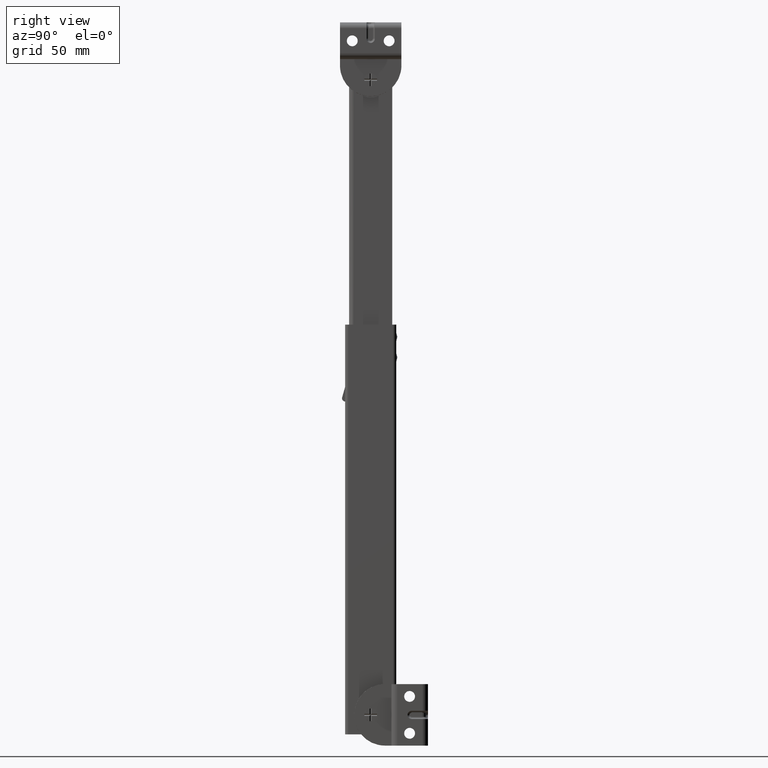
[diagram: clean part render]
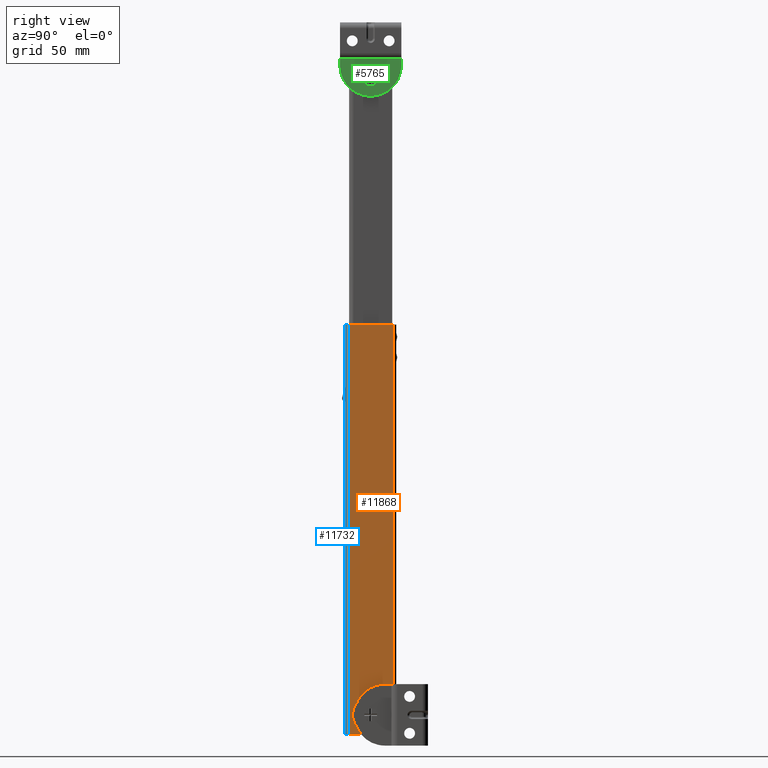
[diagram: same view with three faces highlighted in distinct colors, each labeled with its STEP entity id]
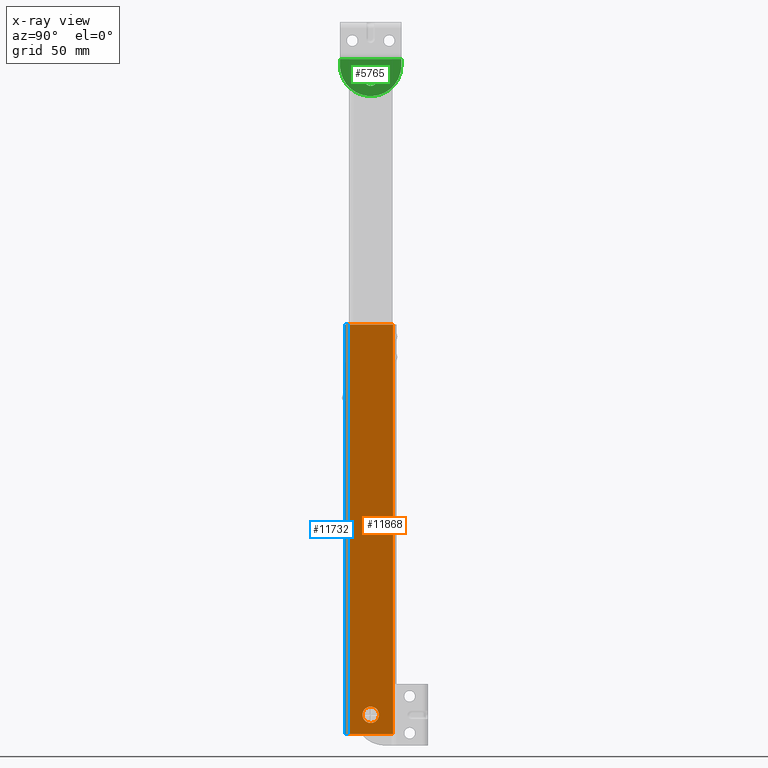
[diagram: x-ray of the same camera — body ghosted, the three highlighted faces saturated]
A machine part, right view with three faces highlighted in distinct colors.
The next image is the same camera in x-ray (body ghosted, the three faces saturated) — at least one of them is partly hidden behind the body in this view.
Their STEP definitions:

[orange] entity #11868 — the highlighted face is a freeform B-spline surface patch.
#10322=CARTESIAN_POINT('',(12.0,-3.972038105131488,0.472136941345894));
#10323=VERTEX_POINT('',#10322);
#10329=CARTESIAN_POINT('',(12.0,0.0,-4.0));
#10330=VERTEX_POINT('',#10329);
#10331=CARTESIAN_POINT('',(11.999999999999998,-3.972038105131488,0.472136941345894));
#10332=CARTESIAN_POINT('',(11.999999999999998,-4.0,0.236896481355243));
#10333=CARTESIAN_POINT('',(12.0,-4.0,0.0));
#10334=CARTESIAN_POINT('',(12.0,-4.000000000000000,-4.000000000000000));
#10335=CARTESIAN_POINT('',(12.0,0.0,-4.0));
#10343=(BOUNDED_CURVE()B_SPLINE_CURVE(2,(#10331,#10332,#10333,#10334,#10335),.UNSPECIFIED.,.F.,.U.)B_SPLINE_CURVE_WITH_KNOTS((3,2,3),(0.229562473284279,0.250000000000000,0.500000000000000),.UNSPECIFIED.)CURVE()GEOMETRIC_REPRESENTATION_ITEM()RATIONAL_B_SPLINE_CURVE((0.956026753734400,0.976055948062586,1.0,0.707106781186548,1.0))REPRESENTATION_ITEM(''));
#10344=EDGE_CURVE('',#10323,#10330,#10343,.T.);
#10346=CARTESIAN_POINT('',(12.0,3.992539193625168,-0.244194159158003));
#10347=VERTEX_POINT('',#10346);
#10348=CARTESIAN_POINT('',(12.0,0.0,-4.0));
#10349=CARTESIAN_POINT('',(12.0,3.762824265699262,-4.000000000000001));
#10350=CARTESIAN_POINT('',(11.999999999999998,3.992539193625168,-0.244194159158003));
#10358=(BOUNDED_CURVE()B_SPLINE_CURVE(2,(#10348,#10349,#10350),.UNSPECIFIED.,.F.,.U.)B_SPLINE_CURVE_WITH_KNOTS((3,3),(0.500000000000000,0.739332962153929),.UNSPECIFIED.)CURVE()GEOMETRIC_REPRESENTATION_ITEM()RATIONAL_B_SPLINE_CURVE((1.0,0.719603993386311,0.976072041484516))REPRESENTATION_ITEM(''));
#10359=EDGE_CURVE('',#10330,#10347,#10358,.T.);
#10433=CARTESIAN_POINT('',(12.0,0.0,4.0));
#10434=VERTEX_POINT('',#10433);
#10435=CARTESIAN_POINT('',(12.0,3.992539193625169,-0.244194159158003));
#10436=CARTESIAN_POINT('',(12.000000000000004,4.0,-0.122211054215786));
#10437=CARTESIAN_POINT('',(12.0,4.0,0.0));
#10438=CARTESIAN_POINT('',(12.0,4.000000000000000,4.000000000000000));
#10439=CARTESIAN_POINT('',(12.0,0.0,4.0));
#10447=(BOUNDED_CURVE()B_SPLINE_CURVE(2,(#10435,#10436,#10437,#10438,#10439),.UNSPECIFIED.,.F.,.U.)B_SPLINE_CURVE_WITH_KNOTS((3,2,3),(0.739332962153928,0.750000000000000,1.0),.UNSPECIFIED.)CURVE()GEOMETRIC_REPRESENTATION_ITEM()RATIONAL_B_SPLINE_CURVE((0.976072041484515,0.987502787800236,1.0,0.707106781186548,1.0))REPRESENTATION_ITEM(''));
#10448=EDGE_CURVE('',#10347,#10434,#10447,.T.);
#10450=CARTESIAN_POINT('',(12.0,0.0,4.0));
#10451=CARTESIAN_POINT('',(12.0,-3.552698098907588,4.000000000000000));
#10452=CARTESIAN_POINT('',(11.999999999999998,-3.972038105131488,0.472136941345894));
#10460=(BOUNDED_CURVE()B_SPLINE_CURVE(2,(#10450,#10451,#10452),.UNSPECIFIED.,.F.,.U.)B_SPLINE_CURVE_WITH_KNOTS((3,3),(0.0,0.229562473284279),.UNSPECIFIED.)CURVE()GEOMETRIC_REPRESENTATION_ITEM()RATIONAL_B_SPLINE_CURVE((1.0,0.731050833123962,0.956026753734400))REPRESENTATION_ITEM(''));
#10461=EDGE_CURVE('',#10434,#10323,#10460,.T.);
#11375=CARTESIAN_POINT('',(11.999993999999999,-10.900001860373660,190.500000000000000));
#11376=VERTEX_POINT('',#11375);
#11392=CARTESIAN_POINT('',(12.0,10.900002000000001,190.500000000000000));
#11393=VERTEX_POINT('',#11392);
#11394=CARTESIAN_POINT('',(11.999993999999999,-10.900001860373660,190.500000000000000));
#11395=CARTESIAN_POINT('',(12.0,10.900002000000001,190.500000000000000));
#11396=QUASI_UNIFORM_CURVE('',1,(#11394,#11395),.UNSPECIFIED.,.F.,.U.);
#11397=EDGE_CURVE('',#11376,#11393,#11396,.T.);
#11547=CARTESIAN_POINT('',(12.0,10.900002000000001,-9.500000000000000));
#11548=VERTEX_POINT('',#11547);
#11562=CARTESIAN_POINT('',(11.999993999999999,-10.900001860373660,-9.500000000000000));
#11563=VERTEX_POINT('',#11562);
#11564=CARTESIAN_POINT('',(11.999993999999999,-10.900001860373660,-9.500000000000000));
#11565=CARTESIAN_POINT('',(12.0,10.900002000000001,-9.500000000000000));
#11566=QUASI_UNIFORM_CURVE('',1,(#11564,#11565),.UNSPECIFIED.,.F.,.U.);
#11567=EDGE_CURVE('',#11563,#11548,#11566,.T.);
#11690=CARTESIAN_POINT('',(12.0,10.900002000000001,-9.500000000000000));
#11691=CARTESIAN_POINT('',(12.0,10.900002000000001,190.500000000000000));
#11692=QUASI_UNIFORM_CURVE('',1,(#11690,#11691),.UNSPECIFIED.,.F.,.U.);
#11693=EDGE_CURVE('',#11548,#11393,#11692,.T.);
#11725=CARTESIAN_POINT('',(11.999993999999999,-10.900001860373660,-9.500000000000000));
#11726=CARTESIAN_POINT('',(11.999993999999999,-10.900001860373660,190.500000000000000));
#11727=QUASI_UNIFORM_CURVE('',1,(#11725,#11726),.UNSPECIFIED.,.F.,.U.);
#11728=EDGE_CURVE('',#11563,#11376,#11727,.T.);
#11851=CARTESIAN_POINT('',(12.0,11.988911663402421,200.489999612361200));
#11852=CARTESIAN_POINT('',(12.0,11.988911663402421,-19.490004976779211));
#11853=CARTESIAN_POINT('',(12.0,-11.988910939054410,200.489999612361200));
#11854=CARTESIAN_POINT('',(12.0,-11.988910939054410,-19.490004976779211));
#11855=B_SPLINE_SURFACE_WITH_KNOTS('',1,1,((#11851,#11853),(#11852,#11854)),.UNSPECIFIED.,.F.,.F.,.U.,(2,2),(2,2),(0.0,219.980004589140410),(0.0,23.977822602456840),.UNSPECIFIED.);
#11856=ORIENTED_EDGE('',*,*,#11397,.F.);
#11857=ORIENTED_EDGE('',*,*,#11728,.F.);
#11858=ORIENTED_EDGE('',*,*,#11567,.T.);
#11859=ORIENTED_EDGE('',*,*,#11693,.T.);
#11860=EDGE_LOOP('',(#11856,#11857,#11858,#11859));
#11861=FACE_OUTER_BOUND('',#11860,.T.);
#11862=ORIENTED_EDGE('',*,*,#10359,.F.);
#11863=ORIENTED_EDGE('',*,*,#10344,.F.);
#11864=ORIENTED_EDGE('',*,*,#10461,.F.);
#11865=ORIENTED_EDGE('',*,*,#10448,.F.);
#11866=EDGE_LOOP('',(#11862,#11863,#11864,#11865));
#11867=FACE_BOUND('',#11866,.T.);
#11868=ADVANCED_FACE('',(#11861,#11867),#11855,.F.);

[blue] entity #11732 — the highlighted face is a freeform B-spline surface patch.
#11368=CARTESIAN_POINT('',(10.399994083775800,-12.500002000000000,190.500000000000000));
#11369=VERTEX_POINT('',#11368);
#11375=CARTESIAN_POINT('',(11.999993999999999,-10.900001860373660,190.500000000000000));
#11376=VERTEX_POINT('',#11375);
#11377=CARTESIAN_POINT('',(10.399994083775800,-12.500002000000000,190.500000000000000));
#11378=CARTESIAN_POINT('',(11.062735799930994,-12.500001965298924,190.500000000000060));
#11379=CARTESIAN_POINT('',(11.531364928883059,-12.031372770913890,190.500000000000000));
#11380=CARTESIAN_POINT('',(11.999994057835119,-11.562743576528854,190.500000000000060));
#11381=CARTESIAN_POINT('',(11.999993999999990,-10.900001860373660,190.500000000000000));
#11389=(BOUNDED_CURVE()B_SPLINE_CURVE(2,(#11377,#11378,#11379,#11380,#11381),.UNSPECIFIED.,.F.,.U.)B_SPLINE_CURVE_WITH_KNOTS((3,2,3),(0.0,0.500000000000000,1.0),.UNSPECIFIED.)CURVE()GEOMETRIC_REPRESENTATION_ITEM()RATIONAL_B_SPLINE_CURVE((1.0,0.923879529171744,1.0,0.923879529171744,1.0))REPRESENTATION_ITEM(''));
#11390=EDGE_CURVE('',#11369,#11376,#11389,.T.);
#11496=CARTESIAN_POINT('',(10.399994083775800,-12.500002000000000,-9.500000000000000));
#11497=VERTEX_POINT('',#11496);
#11562=CARTESIAN_POINT('',(11.999993999999999,-10.900001860373660,-9.500000000000000));
#11563=VERTEX_POINT('',#11562);
#11569=CARTESIAN_POINT('',(10.399994083775800,-12.500002000000000,-9.500000000000000));
#11570=CARTESIAN_POINT('',(11.062735799930994,-12.500001965298924,-9.500000000000002));
#11571=CARTESIAN_POINT('',(11.531364928883059,-12.031372770913890,-9.500000000000000));
#11572=CARTESIAN_POINT('',(11.999994057835119,-11.562743576528854,-9.500000000000002));
#11573=CARTESIAN_POINT('',(11.999993999999990,-10.900001860373660,-9.500000000000000));
#11581=(BOUNDED_CURVE()B_SPLINE_CURVE(2,(#11569,#11570,#11571,#11572,#11573),.UNSPECIFIED.,.F.,.U.)B_SPLINE_CURVE_WITH_KNOTS((3,2,3),(0.0,0.500000000000000,1.0),.UNSPECIFIED.)CURVE()GEOMETRIC_REPRESENTATION_ITEM()RATIONAL_B_SPLINE_CURVE((1.0,0.923879529171744,1.0,0.923879529171744,1.0))REPRESENTATION_ITEM(''));
#11582=EDGE_CURVE('',#11497,#11563,#11581,.T.);
#11704=CARTESIAN_POINT('',(11.998471150876719,-10.830210896519400,-14.500000000000011));
#11705=CARTESIAN_POINT('',(11.998471150876719,-10.830210896519400,195.625000000000000));
#11706=CARTESIAN_POINT('',(12.076689284000446,-12.621698526705110,-14.500000000000009));
#11707=CARTESIAN_POINT('',(12.076689284000446,-12.621698526705110,195.625000000000110));
#11708=CARTESIAN_POINT('',(10.287900966914032,-12.496070655144125,-14.500000000000011));
#11709=CARTESIAN_POINT('',(10.287900966914032,-12.496070655144125,195.625000000000030));
#11717=(BOUNDED_SURFACE()B_SPLINE_SURFACE(1,2,((#11704,#11706,#11708),(#11705,#11707,#11709)),.UNSPECIFIED.,.F.,.F.,.U.)B_SPLINE_SURFACE_WITH_KNOTS((2,2),(3,3),(0.0,210.125000000000000),(0.0,2.866788267697665),.UNSPECIFIED.)GEOMETRIC_REPRESENTATION_ITEM()RATIONAL_B_SPLINE_SURFACE(((1.0,0.664513874721744,0.996233608351123),(1.0,0.664513874721744,0.996233608351123)))REPRESENTATION_ITEM('')SURFACE());
#11718=ORIENTED_EDGE('',*,*,#11390,.F.);
#11719=CARTESIAN_POINT('',(10.399994083775800,-12.500002000000000,-9.500000000000000));
#11720=CARTESIAN_POINT('',(10.399994083775800,-12.500002000000000,190.500000000000000));
#11721=QUASI_UNIFORM_CURVE('',1,(#11719,#11720),.UNSPECIFIED.,.F.,.U.);
#11722=EDGE_CURVE('',#11497,#11369,#11721,.T.);
#11723=ORIENTED_EDGE('',*,*,#11722,.F.);
#11724=ORIENTED_EDGE('',*,*,#11582,.T.);
#11725=CARTESIAN_POINT('',(11.999993999999999,-10.900001860373660,-9.500000000000000));
#11726=CARTESIAN_POINT('',(11.999993999999999,-10.900001860373660,190.500000000000000));
#11727=QUASI_UNIFORM_CURVE('',1,(#11725,#11726),.UNSPECIFIED.,.F.,.U.);
#11728=EDGE_CURVE('',#11563,#11376,#11727,.T.);
#11729=ORIENTED_EDGE('',*,*,#11728,.T.);
#11730=EDGE_LOOP('',(#11718,#11723,#11724,#11729));
#11731=FACE_OUTER_BOUND('',#11730,.T.);
#11732=ADVANCED_FACE('',(#11731),#11717,.T.);

[green] entity #5765 — the highlighted face is a freeform B-spline surface patch.
#2996=CARTESIAN_POINT('',(14.899993999999960,3.026411951911372,310.378590408394470));
#2997=VERTEX_POINT('',#2996);
#3003=CARTESIAN_POINT('',(14.899993999999960,5.684342E-014,313.050000000000010));
#3004=VERTEX_POINT('',#3003);
#3005=CARTESIAN_POINT('',(14.899993999999960,5.684342E-014,313.050000000000010));
#3006=CARTESIAN_POINT('',(14.899993999999959,2.692230726780663,313.050000000000130));
#3007=CARTESIAN_POINT('',(14.899993999999966,3.026411951911372,310.378590408394530));
#3015=(BOUNDED_CURVE()B_SPLINE_CURVE(2,(#3005,#3006,#3007),.UNSPECIFIED.,.F.,.U.)B_SPLINE_CURVE_WITH_KNOTS((3,3),(0.500000000000000,0.728526070800710),.UNSPECIFIED.)CURVE()GEOMETRIC_REPRESENTATION_ITEM()RATIONAL_B_SPLINE_CURVE((1.0,0.732265054161557,0.954005429831116))REPRESENTATION_ITEM(''));
#3016=EDGE_CURVE('',#3004,#2997,#3015,.T.);
#3018=CARTESIAN_POINT('',(14.899993999999960,-3.049883865324402,309.973384064293380));
#3019=VERTEX_POINT('',#3018);
#3020=CARTESIAN_POINT('',(14.899993999999957,-3.049883865324401,309.973384064293440));
#3021=CARTESIAN_POINT('',(14.899993999999957,-3.049999999999943,309.986691777560220));
#3022=CARTESIAN_POINT('',(14.899993999999960,-3.049999999999943,310.0));
#3023=CARTESIAN_POINT('',(14.899993999999957,-3.049999999999942,313.050000000000010));
#3024=CARTESIAN_POINT('',(14.899993999999960,5.684342E-014,313.050000000000010));
#3032=(BOUNDED_CURVE()B_SPLINE_CURVE(2,(#3020,#3021,#3022,#3023,#3024),.UNSPECIFIED.,.F.,.U.)B_SPLINE_CURVE_WITH_KNOTS((3,2,3),(0.248460105383573,0.250000000000000,0.500000000000000),.UNSPECIFIED.)CURVE()GEOMETRIC_REPRESENTATION_ITEM()RATIONAL_B_SPLINE_CURVE((0.996414027449074,0.998195901236644,1.0,0.707106781186547,1.0))REPRESENTATION_ITEM(''));
#3033=EDGE_CURVE('',#3019,#3004,#3032,.T.);
#3113=CARTESIAN_POINT('',(14.899993999999960,5.684342E-014,306.949999999999990));
#3114=VERTEX_POINT('',#3113);
#3115=CARTESIAN_POINT('',(14.899993999999960,5.684342E-014,306.949999999999990));
#3116=CARTESIAN_POINT('',(14.899993999999966,-3.023499187483509,306.949999999999990));
#3117=CARTESIAN_POINT('',(14.899993999999964,-3.049883865324402,309.973384064293440));
#3125=(BOUNDED_CURVE()B_SPLINE_CURVE(2,(#3115,#3116,#3117),.UNSPECIFIED.,.F.,.U.)B_SPLINE_CURVE_WITH_KNOTS((3,3),(0.0,0.248460105383573),.UNSPECIFIED.)CURVE()GEOMETRIC_REPRESENTATION_ITEM()RATIONAL_B_SPLINE_CURVE((1.0,0.708910879949903,0.996414027449074))REPRESENTATION_ITEM(''));
#3126=EDGE_CURVE('',#3114,#3019,#3125,.T.);
#3128=CARTESIAN_POINT('',(14.899993999999964,3.026411951911372,310.378590408394530));
#3129=CARTESIAN_POINT('',(14.899993999999964,3.050000000000057,310.190030031052290));
#3130=CARTESIAN_POINT('',(14.899993999999960,3.050000000000057,310.0));
#3131=CARTESIAN_POINT('',(14.899993999999957,3.050000000000057,306.949999999999930));
#3132=CARTESIAN_POINT('',(14.899993999999960,5.684342E-014,306.949999999999990));
#3140=(BOUNDED_CURVE()B_SPLINE_CURVE(2,(#3128,#3129,#3130,#3131,#3132),.UNSPECIFIED.,.F.,.U.)B_SPLINE_CURVE_WITH_KNOTS((3,2,3),(0.728526070800710,0.750000000000000,1.0),.UNSPECIFIED.)CURVE()GEOMETRIC_REPRESENTATION_ITEM()RATIONAL_B_SPLINE_CURVE((0.954005429831116,0.974841727024991,1.0,0.707106781186547,1.0))REPRESENTATION_ITEM(''));
#3141=EDGE_CURVE('',#2997,#3114,#3140,.T.);
#5370=CARTESIAN_POINT('',(14.899994000000000,-15.0,317.0));
#5371=VERTEX_POINT('',#5370);
#5396=CARTESIAN_POINT('',(14.899994000000000,15.0,317.0));
#5397=VERTEX_POINT('',#5396);
#5403=CARTESIAN_POINT('',(14.899994000000000,15.000000000000060,317.0));
#5404=CARTESIAN_POINT('',(14.899994000000000,15.000000000000055,301.999999999999940));
#5405=CARTESIAN_POINT('',(14.899994000000000,5.551115E-014,302.0));
#5406=CARTESIAN_POINT('',(14.899994000000000,-14.999999999999941,301.999999999999940));
#5407=CARTESIAN_POINT('',(14.899994000000000,-14.999999999999940,317.0));
#5415=(BOUNDED_CURVE()B_SPLINE_CURVE(2,(#5403,#5404,#5405,#5406,#5407),.UNSPECIFIED.,.F.,.U.)B_SPLINE_CURVE_WITH_KNOTS((3,2,3),(0.0,0.500000000000000,1.0),.UNSPECIFIED.)CURVE()GEOMETRIC_REPRESENTATION_ITEM()RATIONAL_B_SPLINE_CURVE((1.0,0.707106781186547,1.0,0.707106781186547,1.0))REPRESENTATION_ITEM(''));
#5416=EDGE_CURVE('',#5397,#5371,#5415,.T.);
#5468=CARTESIAN_POINT('',(14.899994000000000,-15.0,320.100006000000010));
#5469=VERTEX_POINT('',#5468);
#5470=CARTESIAN_POINT('',(14.899994000000000,-15.0,320.100006000000010));
#5471=CARTESIAN_POINT('',(14.899994000000000,-15.0,317.0));
#5472=QUASI_UNIFORM_CURVE('',1,(#5470,#5471),.UNSPECIFIED.,.F.,.U.);
#5473=EDGE_CURVE('',#5469,#5371,#5472,.T.);
#5581=CARTESIAN_POINT('',(14.899994000000000,15.0,320.100006000000010));
#5582=VERTEX_POINT('',#5581);
#5588=CARTESIAN_POINT('',(14.899994000000000,15.0,320.100006000000010));
#5589=CARTESIAN_POINT('',(14.899994000000000,15.0,317.0));
#5590=QUASI_UNIFORM_CURVE('',1,(#5588,#5589),.UNSPECIFIED.,.F.,.U.);
#5591=EDGE_CURVE('',#5582,#5397,#5590,.T.);
#5744=CARTESIAN_POINT('',(14.899994000000000,16.498499941854170,301.095904735381910));
#5745=CARTESIAN_POINT('',(14.899994000000000,16.498499941854170,321.004101750098700));
#5746=CARTESIAN_POINT('',(14.899994000000000,-16.498500746516878,301.095904735381910));
#5747=CARTESIAN_POINT('',(14.899994000000000,-16.498500746516878,321.004101750098700));
#5748=B_SPLINE_SURFACE_WITH_KNOTS('',1,1,((#5744,#5746),(#5745,#5747)),.UNSPECIFIED.,.F.,.F.,.U.,(2,2),(2,2),(0.0,19.908197014716851),(0.0,32.997000688371060),.UNSPECIFIED.);
#5749=ORIENTED_EDGE('',*,*,#5591,.F.);
#5750=CARTESIAN_POINT('',(14.899994000000000,15.0,320.100006000000010));
#5751=CARTESIAN_POINT('',(14.899994000000000,-15.0,320.100006000000010));
#5752=QUASI_UNIFORM_CURVE('',1,(#5750,#5751),.UNSPECIFIED.,.F.,.U.);
#5753=EDGE_CURVE('',#5582,#5469,#5752,.T.);
#5754=ORIENTED_EDGE('',*,*,#5753,.T.);
#5755=ORIENTED_EDGE('',*,*,#5473,.T.);
#5756=ORIENTED_EDGE('',*,*,#5416,.F.);
#5757=EDGE_LOOP('',(#5749,#5754,#5755,#5756));
#5758=FACE_OUTER_BOUND('',#5757,.T.);
#5759=ORIENTED_EDGE('',*,*,#3126,.T.);
#5760=ORIENTED_EDGE('',*,*,#3033,.T.);
#5761=ORIENTED_EDGE('',*,*,#3016,.T.);
#5762=ORIENTED_EDGE('',*,*,#3141,.T.);
#5763=EDGE_LOOP('',(#5759,#5760,#5761,#5762));
#5764=FACE_BOUND('',#5763,.T.);
#5765=ADVANCED_FACE('',(#5758,#5764),#5748,.T.);